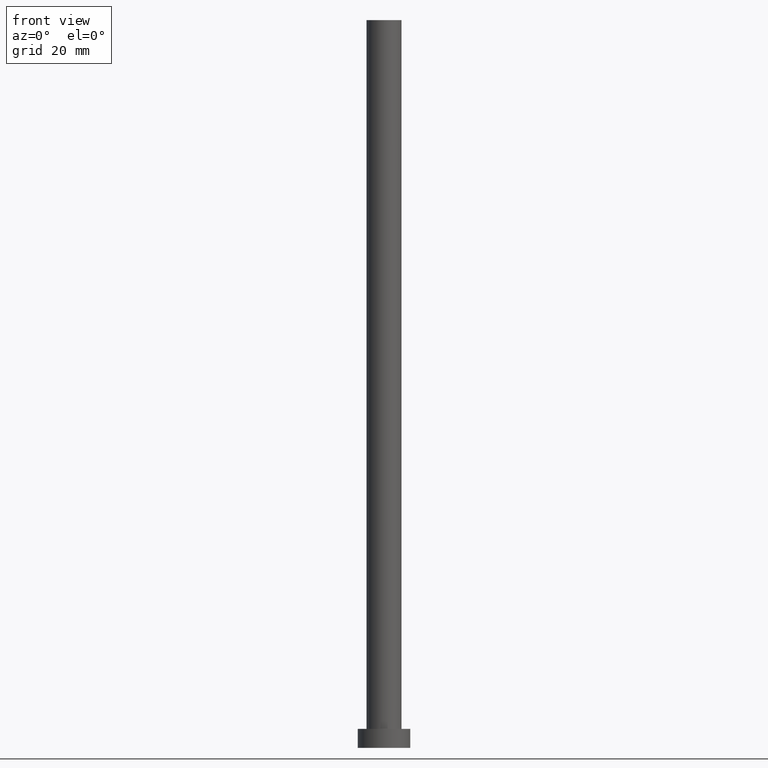
[diagram: clean part render]
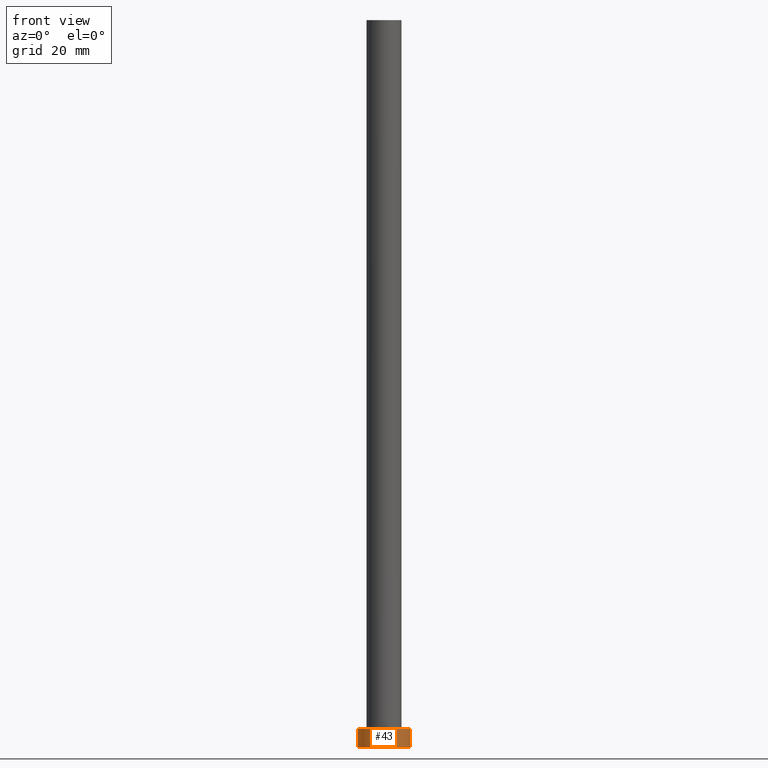
[diagram: same view with one face highlighted and labeled with its STEP entity id]
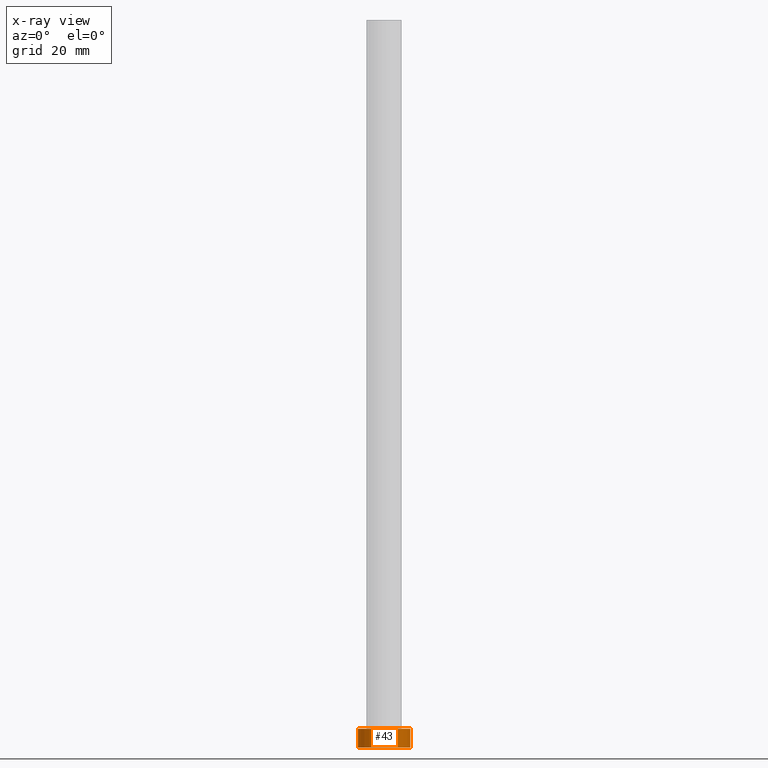
[diagram: x-ray of the same camera — body ghosted, the highlighted face saturated]
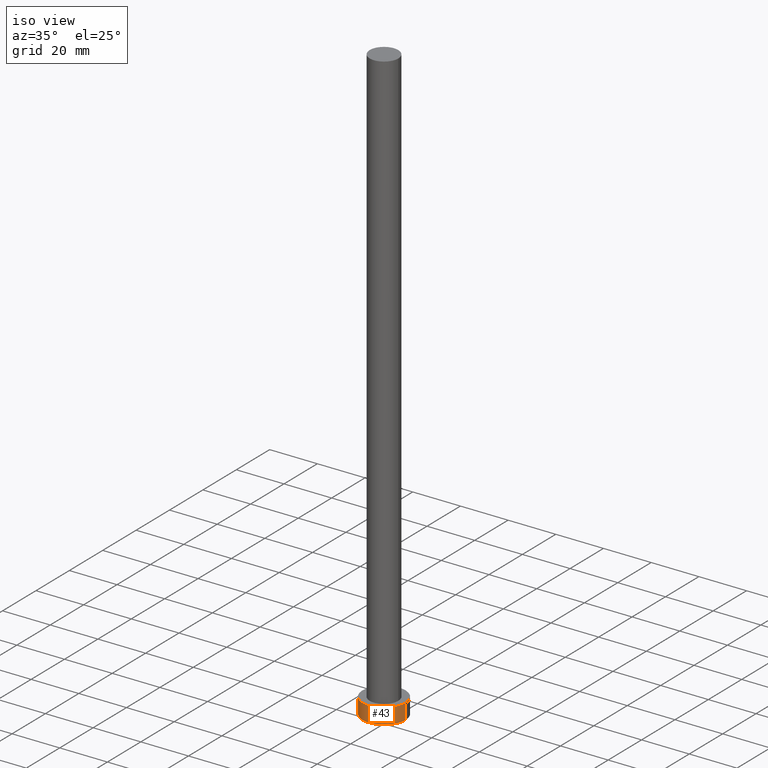
[diagram: same view with one face highlighted and labeled with its STEP entity id]
A machine part, front view. The second image highlights one B-rep face of the part: STEP entity #43.
The next image is the same camera in x-ray: the body ghosted, the highlighted face saturated — about 0% of this face is hidden behind the body in this view.
A second angle (iso view) of the same face is appended — the face is thin or edge-on in the first view.
In plain terms, the highlighted cylindrical surface (edge-blend (fillet) strip) has radius 9 mm, axis along (-0, -0, -1).
Its self-contained STEP definition (entity closure, byte-faithful):
#2 = CARTESIAN_POINT ( 'NONE',  ( -9.000000000000000000, 0.000000000000000000, 6.500000000000000000 ) ) ;
#7 = VERTEX_POINT ( 'NONE', #41 ) ;
#9 = DIRECTION ( 'NONE',  ( 0.000000000000000000, 0.000000000000000000, 1.000000000000000000 ) ) ;
#10 = VECTOR ( 'NONE', #89, 1000.000000000000000 ) ;
#12 = CARTESIAN_POINT ( 'NONE',  ( 9.000000000000000000, 1.102182119232617517E-15, 6.500000000000000000 ) ) ;
#14 = EDGE_CURVE ( 'NONE', #98, #7, #116, .T. ) ;
#16 = DIRECTION ( 'NONE',  ( 0.000000000000000000, 0.000000000000000000, 1.000000000000000000 ) ) ;
#24 = ORIENTED_EDGE ( 'NONE', *, *, #139, .F. ) ;
#31 = DIRECTION ( 'NONE',  ( -0.000000000000000000, -0.000000000000000000, -1.000000000000000000 ) ) ;
#41 = CARTESIAN_POINT ( 'NONE',  ( 9.000000000000000000, 1.102182119232617517E-15, 0.000000000000000000 ) ) ;
#43 = ADVANCED_FACE ( 'NONE', ( #49 ), #101, .T. ) ;
#49 = FACE_OUTER_BOUND ( 'NONE', #68, .T. ) ;
#53 = DIRECTION ( 'NONE',  ( 1.000000000000000000, 0.000000000000000000, 0.000000000000000000 ) ) ;
#68 = EDGE_LOOP ( 'NONE', ( #24, #186, #174, #135 ) ) ;
#69 = EDGE_CURVE ( 'NONE', #198, #248, #86, .T. ) ;
#82 = AXIS2_PLACEMENT_3D ( 'NONE', #246, #31, #145 ) ;
#86 = CIRCLE ( 'NONE', #102, 9.000000000000000000 ) ;
#89 = DIRECTION ( 'NONE',  ( -0.000000000000000000, -0.000000000000000000, -1.000000000000000000 ) ) ;
#98 = VERTEX_POINT ( 'NONE', #138 ) ;
#100 = DIRECTION ( 'NONE',  ( 1.000000000000000000, 0.000000000000000000, 0.000000000000000000 ) ) ;
#101 = CYLINDRICAL_SURFACE ( 'NONE', #82, 9.000000000000000000 ) ;
#102 = AXIS2_PLACEMENT_3D ( 'NONE', #242, #9, #53 ) ;
#116 = CIRCLE ( 'NONE', #194, 9.000000000000000000 ) ;
#118 = CARTESIAN_POINT ( 'NONE',  ( 0.000000000000000000, 0.000000000000000000, 0.000000000000000000 ) ) ;
#124 = DIRECTION ( 'NONE',  ( -0.000000000000000000, -0.000000000000000000, -1.000000000000000000 ) ) ;
#129 = CARTESIAN_POINT ( 'NONE',  ( 9.000000000000000000, 1.102182119232617517E-15, 6.500000000000000000 ) ) ;
#130 = CARTESIAN_POINT ( 'NONE',  ( -9.000000000000000000, 0.000000000000000000, 6.500000000000000000 ) ) ;
#132 = EDGE_CURVE ( 'NONE', #198, #98, #181, .T. ) ;
#135 = ORIENTED_EDGE ( 'NONE', *, *, #14, .T. ) ;
#138 = CARTESIAN_POINT ( 'NONE',  ( -9.000000000000000000, 0.000000000000000000, 0.000000000000000000 ) ) ;
#139 = EDGE_CURVE ( 'NONE', #248, #7, #244, .T. ) ;
#145 = DIRECTION ( 'NONE',  ( -1.000000000000000000, 0.000000000000000000, 0.000000000000000000 ) ) ;
#155 = VECTOR ( 'NONE', #124, 1000.000000000000000 ) ;
#174 = ORIENTED_EDGE ( 'NONE', *, *, #132, .T. ) ;
#181 = LINE ( 'NONE', #2, #10 ) ;
#186 = ORIENTED_EDGE ( 'NONE', *, *, #69, .F. ) ;
#194 = AXIS2_PLACEMENT_3D ( 'NONE', #118, #16, #100 ) ;
#198 = VERTEX_POINT ( 'NONE', #130 ) ;
#242 = CARTESIAN_POINT ( 'NONE',  ( 0.000000000000000000, 0.000000000000000000, 6.500000000000000000 ) ) ;
#244 = LINE ( 'NONE', #129, #155 ) ;
#246 = CARTESIAN_POINT ( 'NONE',  ( 0.000000000000000000, 0.000000000000000000, 6.500000000000000000 ) ) ;
#248 = VERTEX_POINT ( 'NONE', #12 ) ;